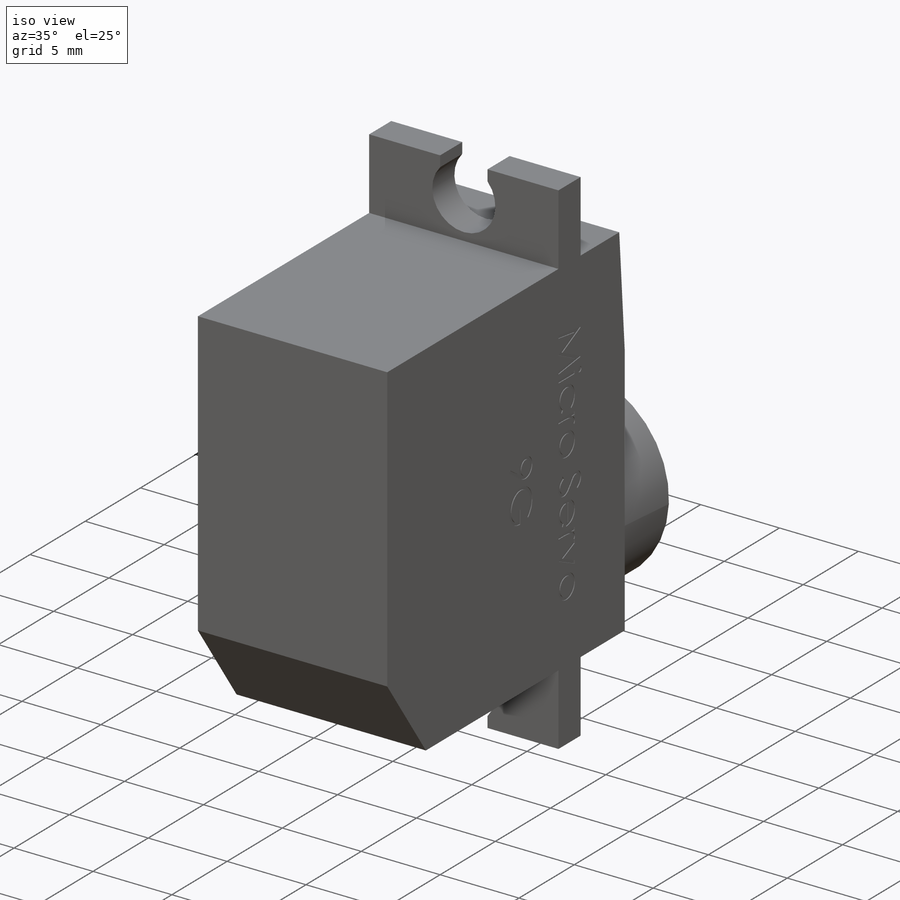
[diagram: iso view]
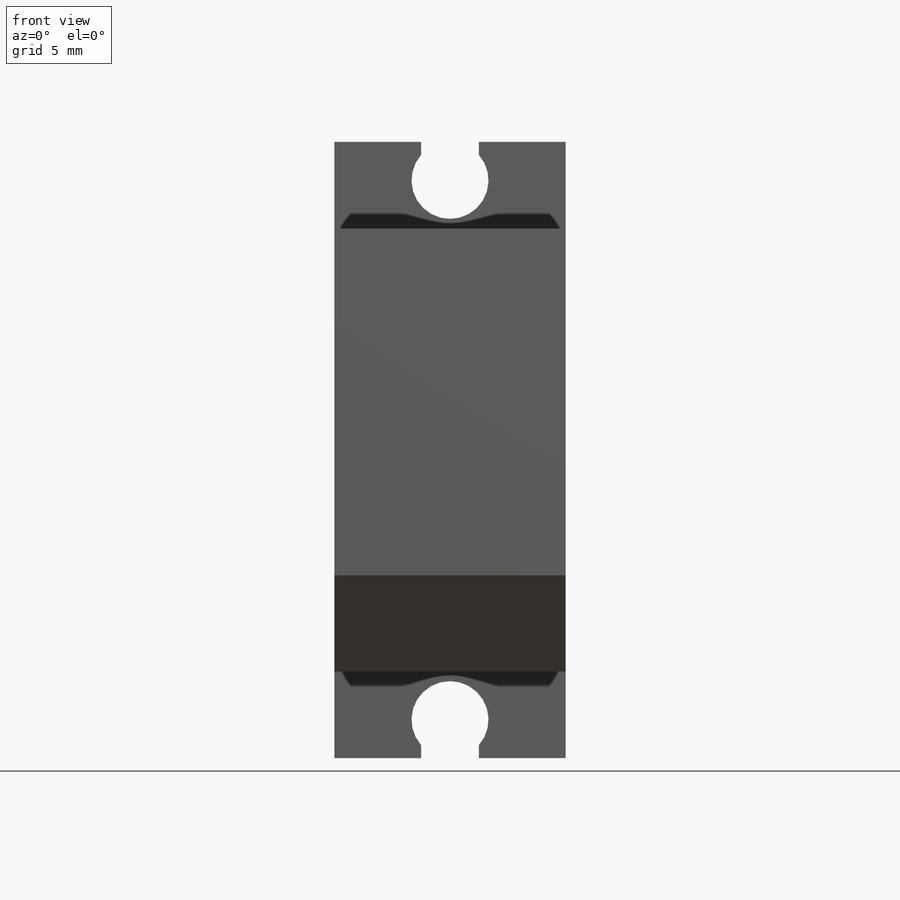
[diagram: front view]
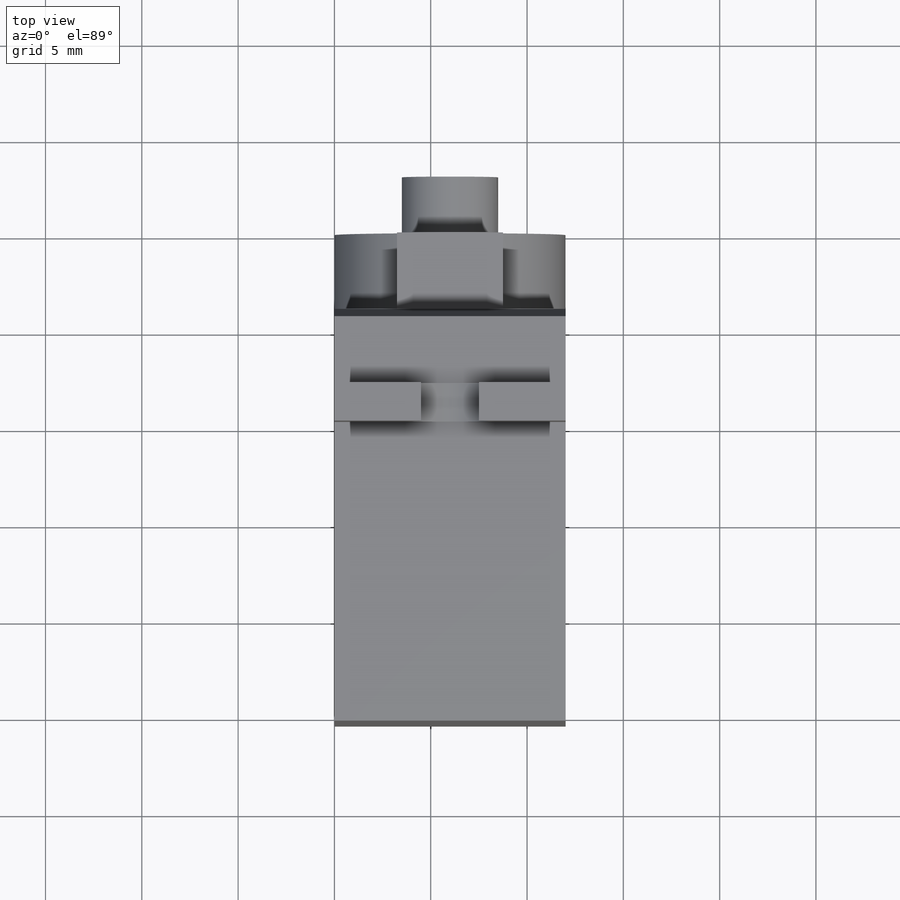
[diagram: top view]
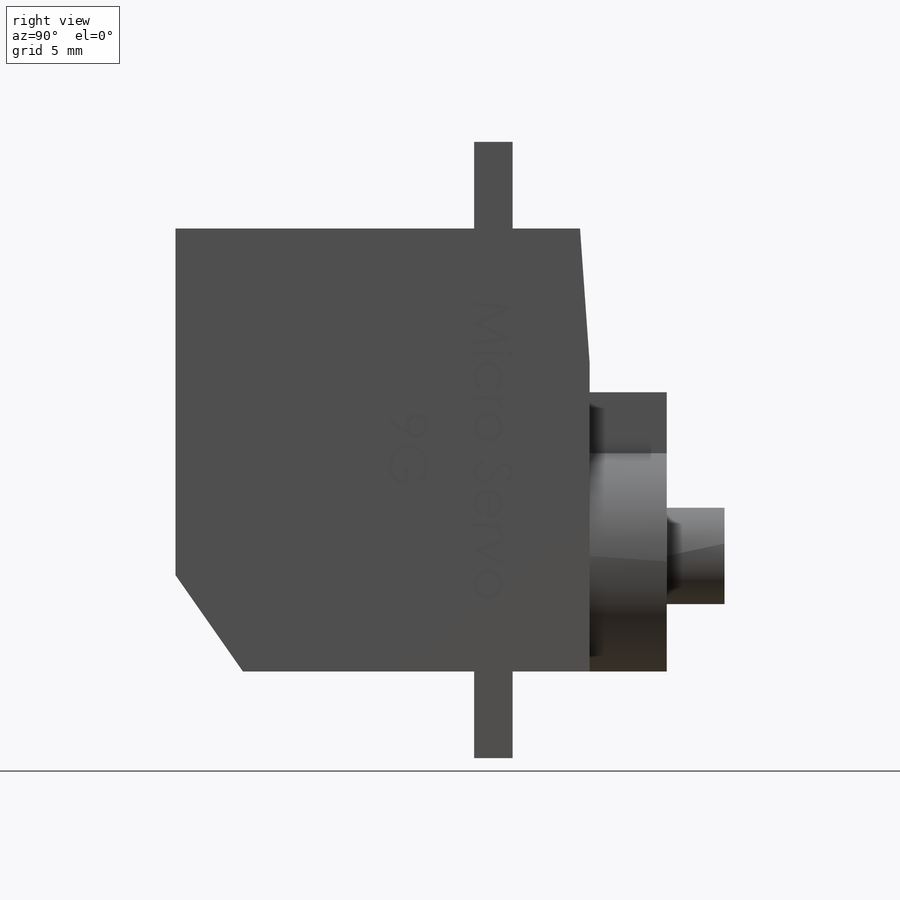
[diagram: right view]
SOLIDWORKS PART (.sldprt)
format: sldprt  version: not decoded by parser v0  size: 465,408 bytes
history: native  units: mm
features: sketch x6, extrude x4, plane x3, cut_extrude x2, material x1 (+9 scaffold rows collapsed)
feature tree (25):
  scaffold x9  (default folders/planes/origin — collapsed)
  material  "Material <nicht festgelegt>"
  plane  "Ebene vorne"
  plane  "Ebene oben"
  plane  "Ebene rechts"
  sketch  "Skizze1"  dims[c1.D5=~1.842025mm c1.D1=12.0mm c1.D2=32.0mm c1.D3=2.0mm c1.D4=2.0mm c2.D5=3.0mm c2.D6=1.5mm]
  extrude  "Aufsatz-Linear austragen1"  Depth=2mm
  sketch  "Skizze2"  dims[D1=4.5mm D2=4.5mm]
  extrude  "Aufsatz-Linear austragen2"  Depth=15.5mm
  sketch  "Skizze3"  dims[D1=5.5mm D2=7.0mm D3=18.0mm D4=12.0mm]
  cut_extrude  "Schnitt-Linear austragen1"  [1 undecoded]
  sketch  "Skizze4"  dims[D1=6.0mm D2=5.5mm D3=2.75mm D4=14.5mm]
  extrude  "Aufsatz-Linear austragen3"  Depth=4mm
  sketch  "Skizze5"  dims[D1=~2.23157mm]
  extrude  "Aufsatz-Linear austragen4"  Depth=3mm
  sketch  "Skizze6"
  cut_extrude  "Schnitt-Linear austragen2"  Depth=0.05mm
decode coverage: 10 of 12 modeling features carry decoded parameters
note: ~ marks probable driven/reference dimensions
note: 1 parameter value undecoded
note: suppression state not decoded; provenance and decode notes live in map.json
